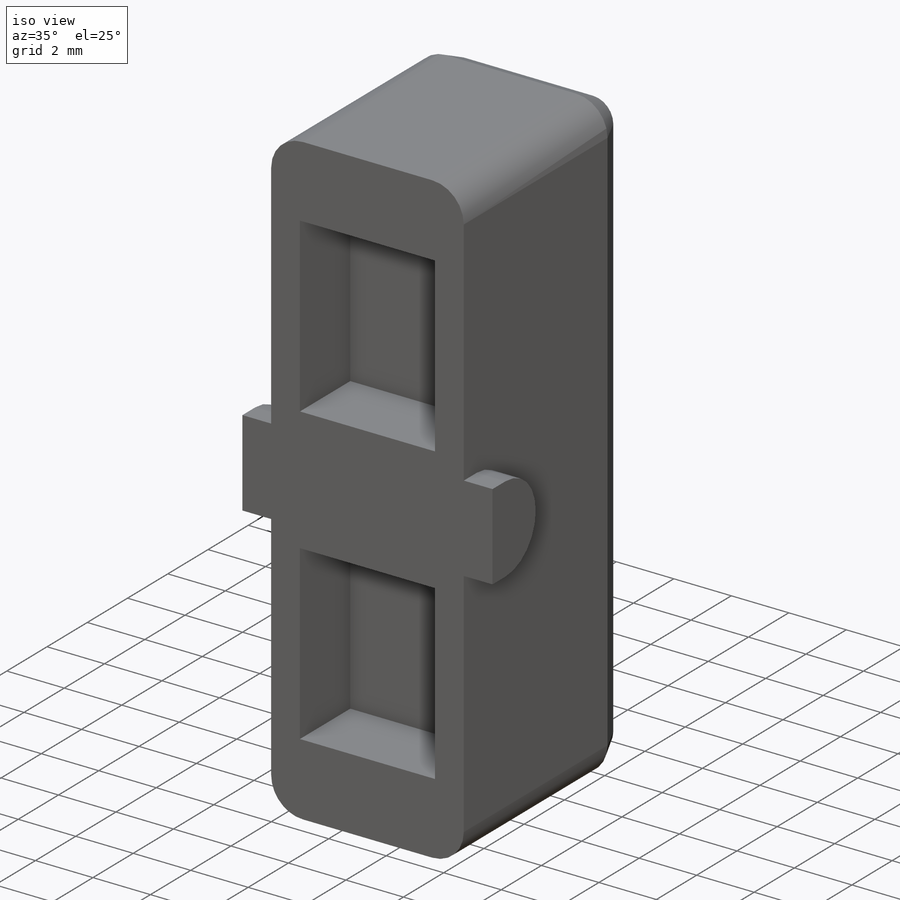
[diagram: iso view]
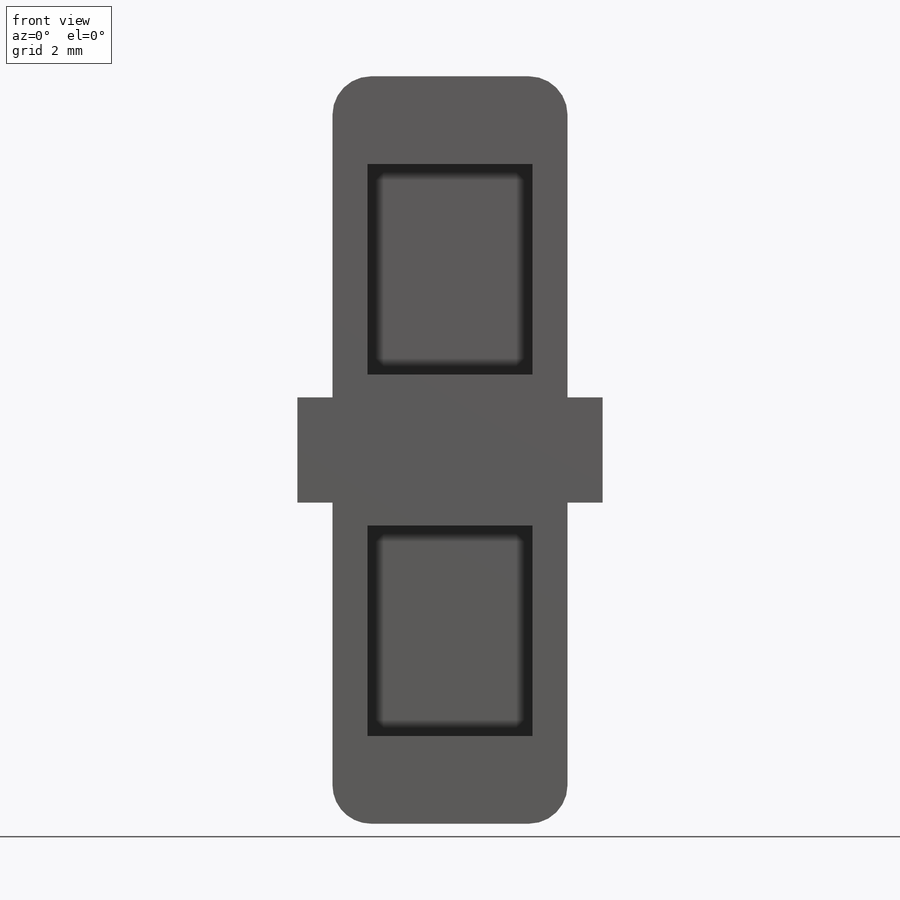
[diagram: front view]
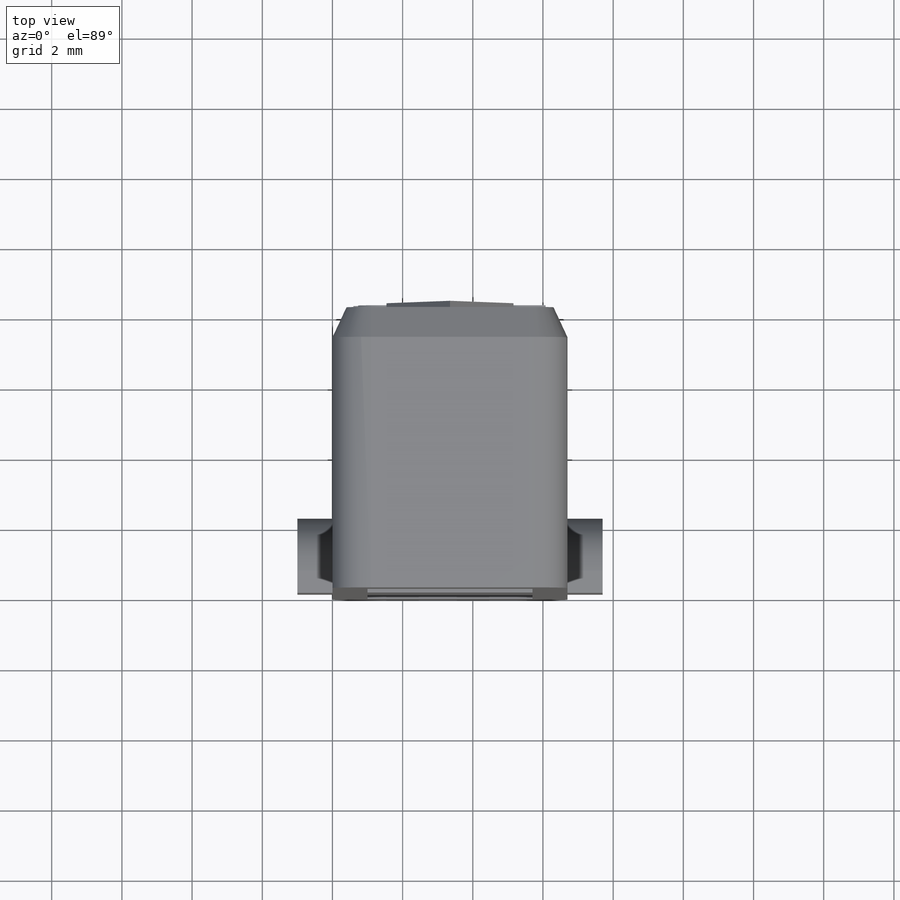
[diagram: top view]
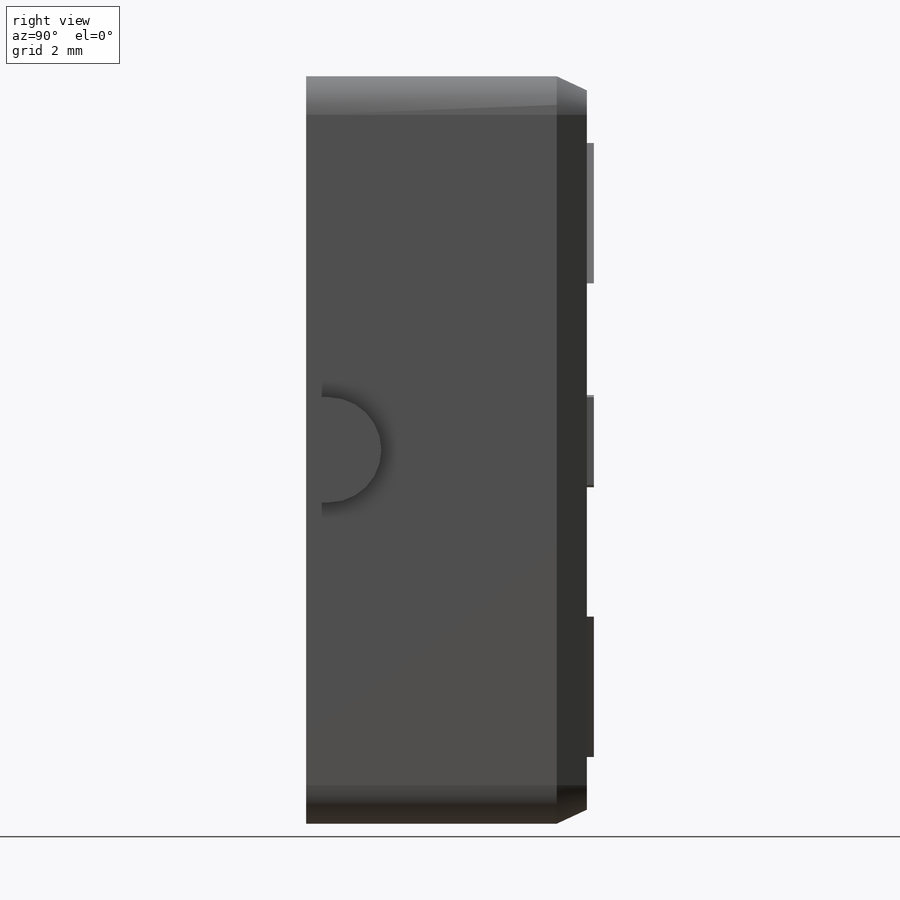
[diagram: right view]
SOLIDWORKS PART (.sldprt)
format: sldprt  version: not decoded by parser v0  size: 439,808 bytes
history: native  units: mm
features: sketch x5, plane x3, extrude x3, cut_extrude x2, material x1, chamfer x1 (+10 scaffold rows collapsed)
feature tree (25):
  scaffold x10  (default folders/planes/origin — collapsed)
  material  "Matériau <non spécifié>"
  plane  "Plan de face"
  plane  "Plan de dessus"
  plane  "Plan de droite"
  sketch  "Esquisse2"  dims[D3=1.1mm D1=6.7mm D2=21.3mm]
  extrude  "Boss.-Extru.1"  Depth=8mm
  sketch  "Esquisse3"  dims[D1=2.1mm D2=6.0mm D3=1.0mm D4=1.0mm D5=2.5mm D6=6.0mm D7=2.1mm D8=1.0mm D9=2.5mm D10=5.5mm D11=1.0mm]
  chamfer  "Chanfrein1"  Distance=0.4mm Angle=65deg
  sketch  "Esquisse5"  dims[c1.D1=0.6mm c1.D2=~1.532826mm c2.D2=0.6deg c3.D2=0.6mm c3.D3=0.6mm c3.D4=1.8098mm c3.D5=~1.809739mm c3.D6=4.0mm c3.D7=1.5mm c3.D8=0.6mm c3.D9=0.6mm c3.D10=0.6mm c3.D11=4.0mm c3.D12=1.81mm c3.D13=1.81mm c3.D14=1.5mm c3.D15=1.14mm c3.D16=~1.140461mm c3.D17=1.14mm c3.D18=3.62mm]
  extrude  "Boss.-Extru.2"  [1 undecoded]
  sketch  "Esquisse5<4>"  dims[D1=0.2mm]
  cut_extrude  "Enlèv. mat.-Extru.3"  Depth=0.2mm
  cut_extrude  "Enlèv. mat.-Extru.4"  Depth=2.5mm
  sketch  "Esquisse6"  dims[D4=1.5mm D1=9.55mm D2=9.55mm D3=0.0mm D5=6.5mm]
  extrude  "Boss.-Extru.3"  Depth=1mm
decode coverage: 10 of 11 modeling features carry decoded parameters
note: ~ marks probable driven/reference dimensions
note: 1 parameter value undecoded
note: suppression state not decoded; provenance and decode notes live in map.json
